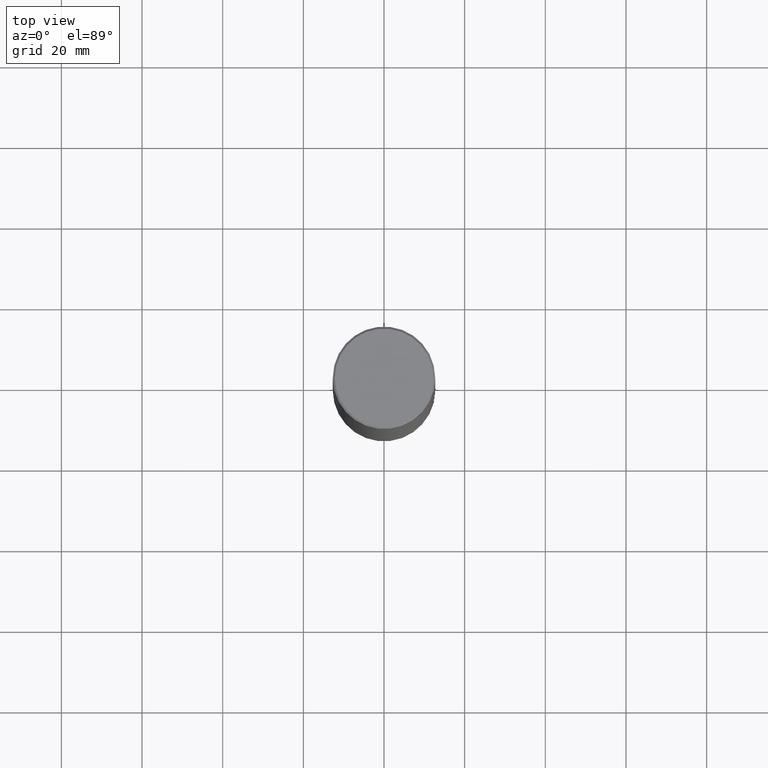
[diagram: clean part render]
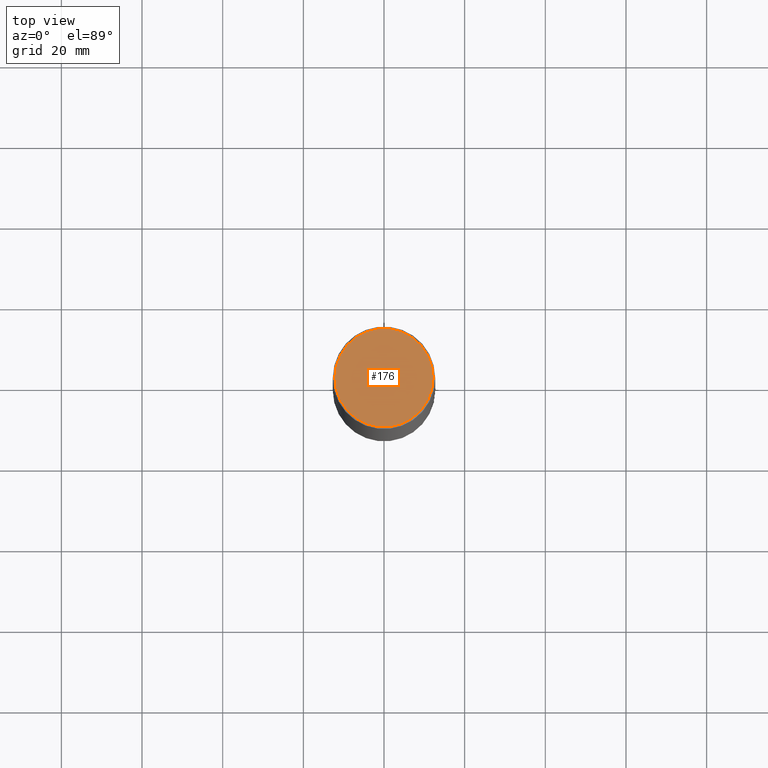
[diagram: same view with one face highlighted and labeled with its STEP entity id]
A machine part, top view. The second image highlights one B-rep face of the part: STEP entity #176.
In plain terms, the highlighted planar face has unit normal (0, -0, -1).
Its self-contained STEP definition (entity closure, byte-faithful):
#25 = PLANE ( 'NONE',  #356 ) ;
#47 = CARTESIAN_POINT ( 'NONE',  ( -2.922783960138615261E-45, 4.172960877065252270E-31, 1.195183497228115035E-16 ) ) ;
#65 = VERTEX_POINT ( 'NONE', #145 ) ;
#95 = EDGE_CURVE ( 'NONE', #65, #269, #343, .T. ) ;
#100 = DIRECTION ( 'NONE',  ( 1.000000000000000000, -6.982962677686266711E-15, 4.874852205035277589E-29 ) ) ;
#101 = CARTESIAN_POINT ( 'NONE',  ( -2.922783960138615261E-45, 4.172960877065252270E-31, 1.195183497228115035E-16 ) ) ;
#110 = AXIS2_PLACEMENT_3D ( 'NONE', #101, #130, #100 ) ;
#118 = DIRECTION ( 'NONE',  ( 1.000000000000000000, -6.982962677686266711E-15, 4.874852205035277589E-29 ) ) ;
#130 = DIRECTION ( 'NONE',  ( -2.445468806185136597E-29, 3.491481338843145583E-15, 1.000000000000000000 ) ) ;
#140 = ORIENTED_EDGE ( 'NONE', *, *, #95, .T. ) ;
#145 = CARTESIAN_POINT ( 'NONE',  ( 0.4799999999999999267, -3.396558832296482099E-15, 1.195183497228351200E-16 ) ) ;
#176 = ADVANCED_FACE ( 'NONE', ( #309 ), #25, .F. ) ;
#226 = DIRECTION ( 'NONE',  ( -1.000000000000000000, 6.982962677686265922E-15, -4.876176775795935793E-29 ) ) ;
#252 = DIRECTION ( 'NONE',  ( 2.438088387897960049E-29, -3.491481338843145188E-15, -1.000000000000000000 ) ) ;
#269 = VERTEX_POINT ( 'NONE', #389 ) ;
#299 = EDGE_LOOP ( 'NONE', ( #319, #140 ) ) ;
#309 = FACE_OUTER_BOUND ( 'NONE', #299, .T. ) ;
#314 = CIRCLE ( 'NONE', #110, 0.4799999999999999267 ) ;
#319 = ORIENTED_EDGE ( 'NONE', *, *, #351, .T. ) ;
#337 = DIRECTION ( 'NONE',  ( -2.445468806185136597E-29, 3.491481338843145583E-15, 1.000000000000000000 ) ) ;
#343 = CIRCLE ( 'NONE', #399, 0.4799999999999999267 ) ;
#350 = CARTESIAN_POINT ( 'NONE',  ( 3.351822085289407153E-15, 0.4799999999999999267, -1.616151867783303914E-15 ) ) ;
#351 = EDGE_CURVE ( 'NONE', #269, #65, #314, .T. ) ;
#356 = AXIS2_PLACEMENT_3D ( 'NONE', #350, #252, #226 ) ;
#389 = CARTESIAN_POINT ( 'NONE',  ( -0.4799999999999999267, 3.386736898677839197E-15, 1.195183497227879609E-16 ) ) ;
#399 = AXIS2_PLACEMENT_3D ( 'NONE', #47, #337, #118 ) ;